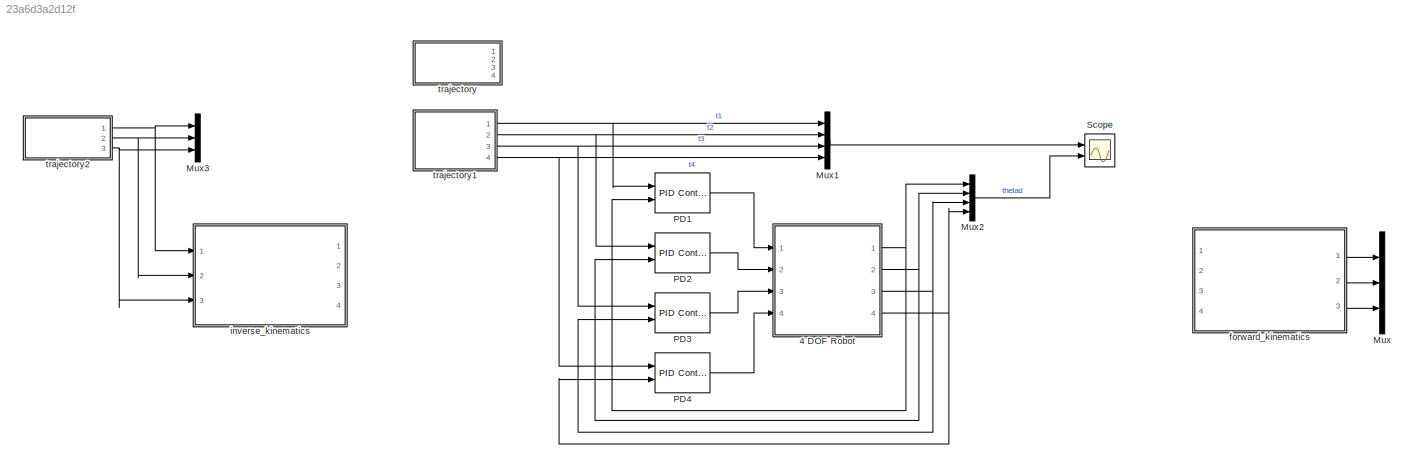
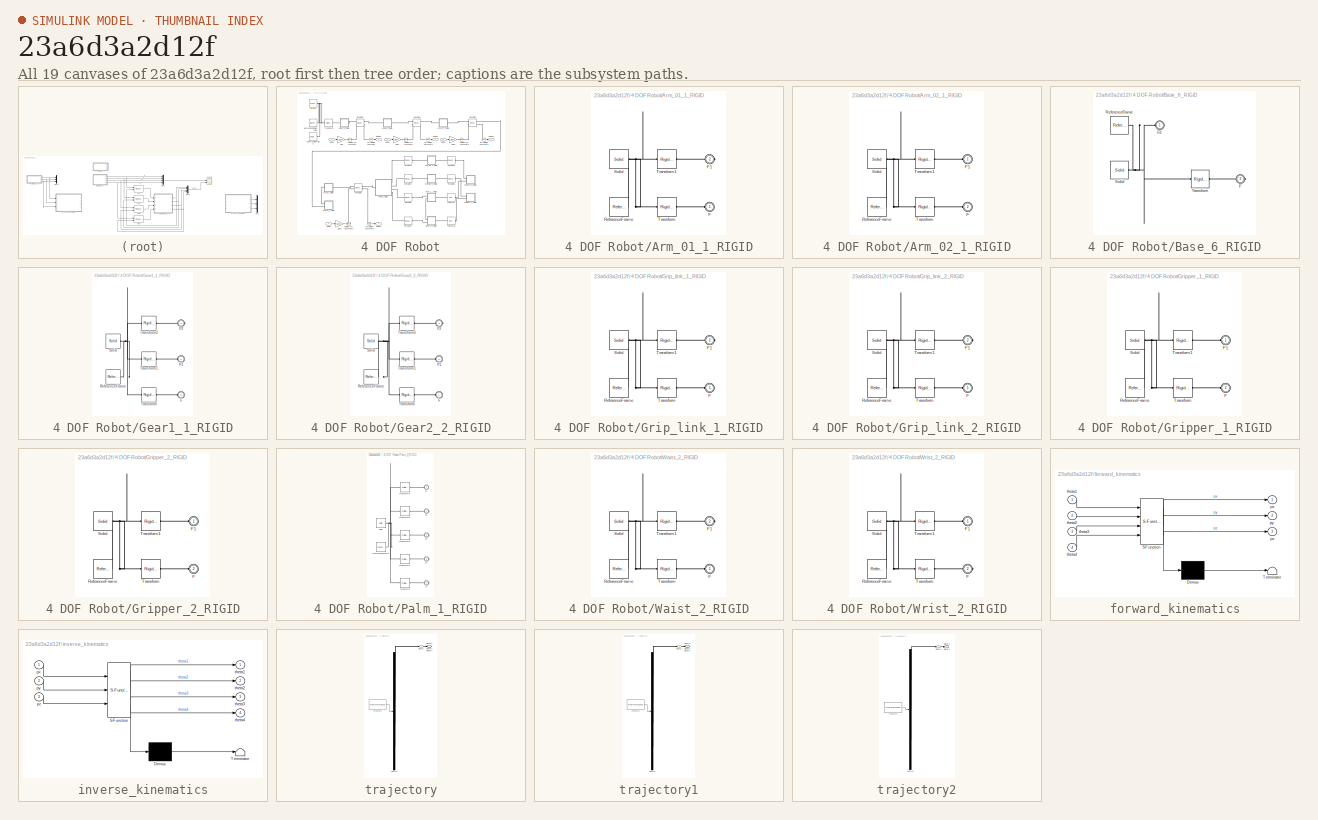
[diagram: thumbnail index - all 19 canvases of the model, root first then tree order]
MODEL slx_23a6d3a2d12f
KIND model
CONFIG AbsTol = auto
CONFIG EnableMultiTasking = off
CONFIG FixedStep = auto
CONFIG MaxStep = auto
CONFIG MinStep = auto
CONFIG RelTol = 1e-3
CONFIG SampleTimeConstraint = Unconstrained
CONFIG Solver = VariableStepAuto
CONFIG SolverName = VariableStepAuto
CONFIG StartTime = 0.0
CONFIG StopTime = 10
WORKSPACE source: external: MATLAB File  (data not in archive)
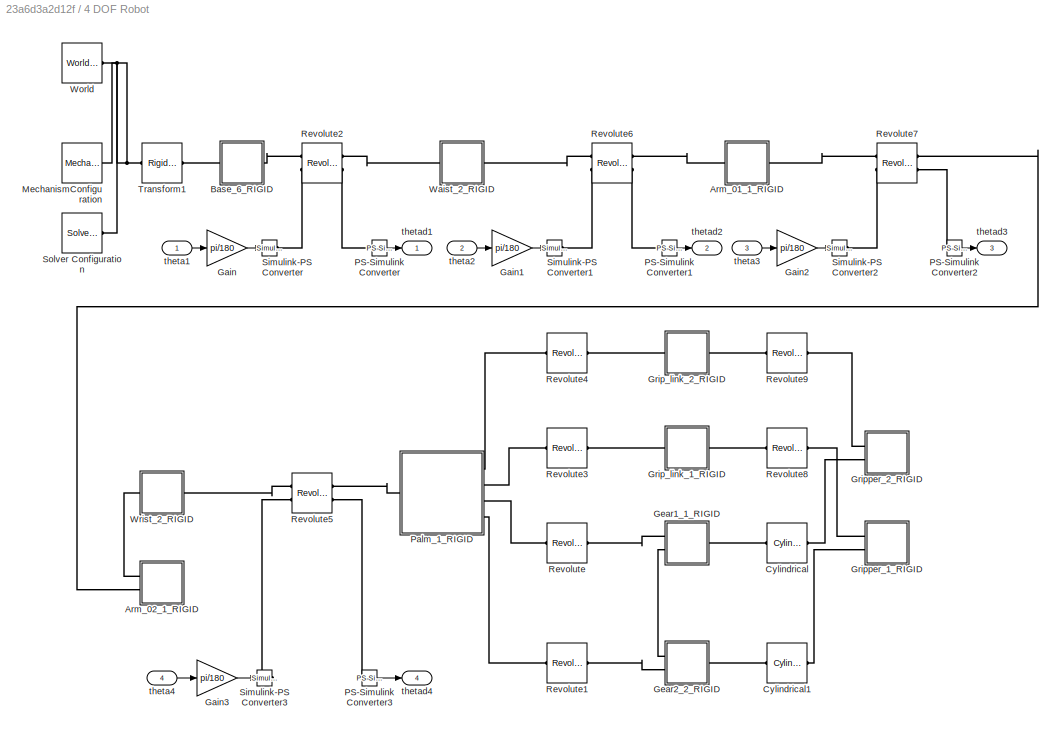
BLOCK [SubSystem] 4 DOF Robot
  Ports = [4, 4]
  RequestExecContextInheritance = off
BLOCK [SubSystem] 4 DOF Robot/Arm_01_1_RIGID
  Ports = [0, 0, 0, 0, 0, 1, 1]
  RequestExecContextInheritance = off
BLOCK [PMIOPort] 4 DOF Robot/Arm_01_1_RIGID/F
  Side = Left
BLOCK [PMIOPort] 4 DOF Robot/Arm_01_1_RIGID/F1
  Port = 2
  Side = Right
BLOCK [Reference] 4 DOF Robot/Arm_01_1_RIGID/ReferenceFrame  REF=sm_lib/Frames and
Transforms/Reference
Frame
  Ports = [0, 0, 0, 0, 0, 0, 1]
  SourceBlock = sm_lib/Frames and\nTransforms/Reference\nFrame
  SourceProductBaseCode = MS
  SourceProductName = Simscape Multibody
  SourceType = Reference\nFrame
BLOCK [Reference] 4 DOF Robot/Arm_01_1_RIGID/Solid  REF=sm_lib/Body Elements/Solid
  Ports = [0, 0, 0, 0, 0, 0, 1]
  SourceBlock = sm_lib/Body Elements/Solid
  SourceProductBaseCode = MS
  SourceProductName = Simscape Multibody
  SourceType = Solid
BLOCK [Reference] 4 DOF Robot/Arm_01_1_RIGID/Transform  REF=sm_lib/Frames and
Transforms/Rigid
Transform
  Ports = [0, 0, 0, 0, 0, 1, 1]
  SourceBlock = sm_lib/Frames and\nTransforms/Rigid\nTransform
  SourceProductBaseCode = MS
  SourceProductName = Simscape Multibody
  SourceType = Rigid\nTransform
BLOCK [Reference] 4 DOF Robot/Arm_01_1_RIGID/Transform1  REF=sm_lib/Frames and
Transforms/Rigid
Transform
  Ports = [0, 0, 0, 0, 0, 1, 1]
  SourceBlock = sm_lib/Frames and\nTransforms/Rigid\nTransform
  SourceProductBaseCode = MS
  SourceProductName = Simscape Multibody
  SourceType = Rigid\nTransform
BLOCK [SubSystem] 4 DOF Robot/Arm_02_1_RIGID
  Ports = [0, 0, 0, 0, 0, 2]
  RequestExecContextInheritance = off
BLOCK [PMIOPort] 4 DOF Robot/Arm_02_1_RIGID/F
  Port = 2
  Side = Left
BLOCK [PMIOPort] 4 DOF Robot/Arm_02_1_RIGID/F1
  Side = Left
BLOCK [Reference] 4 DOF Robot/Arm_02_1_RIGID/ReferenceFrame  REF=sm_lib/Frames and
Transforms/Reference
Frame
  Ports = [0, 0, 0, 0, 0, 0, 1]
  SourceBlock = sm_lib/Frames and\nTransforms/Reference\nFrame
  SourceProductBaseCode = MS
  SourceProductName = Simscape Multibody
  SourceType = Reference\nFrame
BLOCK [Reference] 4 DOF Robot/Arm_02_1_RIGID/Solid  REF=sm_lib/Body Elements/Solid
  Ports = [0, 0, 0, 0, 0, 0, 1]
  SourceBlock = sm_lib/Body Elements/Solid
  SourceProductBaseCode = MS
  SourceProductName = Simscape Multibody
  SourceType = Solid
BLOCK [Reference] 4 DOF Robot/Arm_02_1_RIGID/Transform  REF=sm_lib/Frames and
Transforms/Rigid
Transform
  Ports = [0, 0, 0, 0, 0, 1, 1]
  SourceBlock = sm_lib/Frames and\nTransforms/Rigid\nTransform
  SourceProductBaseCode = MS
  SourceProductName = Simscape Multibody
  SourceType = Rigid\nTransform
BLOCK [Reference] 4 DOF Robot/Arm_02_1_RIGID/Transform1  REF=sm_lib/Frames and
Transforms/Rigid
Transform
  Ports = [0, 0, 0, 0, 0, 1, 1]
  SourceBlock = sm_lib/Frames and\nTransforms/Rigid\nTransform
  SourceProductBaseCode = MS
  SourceProductName = Simscape Multibody
  SourceType = Rigid\nTransform
BLOCK [SubSystem] 4 DOF Robot/Base_6_RIGID
  Ports = [0, 0, 0, 0, 0, 1, 1]
  RequestExecContextInheritance = off
BLOCK [PMIOPort] 4 DOF Robot/Base_6_RIGID/F
  Port = 2
  Side = Right
BLOCK [PMIOPort] 4 DOF Robot/Base_6_RIGID/F2
  Side = Left
BLOCK [Reference] 4 DOF Robot/Base_6_RIGID/ReferenceFrame  REF=sm_lib/Frames and
Transforms/Reference
Frame
  Ports = [0, 0, 0, 0, 0, 0, 1]
  SourceBlock = sm_lib/Frames and\nTransforms/Reference\nFrame
  SourceProductBaseCode = MS
  SourceProductName = Simscape Multibody
  SourceType = Reference\nFrame
BLOCK [Reference] 4 DOF Robot/Base_6_RIGID/Solid  REF=sm_lib/Body Elements/Solid
  Ports = [0, 0, 0, 0, 0, 0, 1]
  SourceBlock = sm_lib/Body Elements/Solid
  SourceProductBaseCode = MS
  SourceProductName = Simscape Multibody
  SourceType = Solid
BLOCK [Reference] 4 DOF Robot/Base_6_RIGID/Transform  REF=sm_lib/Frames and
Transforms/Rigid
Transform
  Ports = [0, 0, 0, 0, 0, 1, 1]
  SourceBlock = sm_lib/Frames and\nTransforms/Rigid\nTransform
  SourceProductBaseCode = MS
  SourceProductName = Simscape Multibody
  SourceType = Rigid\nTransform
BLOCK [Reference] 4 DOF Robot/Cylindrical  REF=sm_lib/Joints/Cylindrical
Joint
  Ports = [0, 0, 0, 0, 0, 1, 1]
  SourceBlock = sm_lib/Joints/Cylindrical\nJoint
  SourceProductBaseCode = MS
  SourceProductName = Simscape Multibody
  SourceType = Cylindrical\nJoint
BLOCK [Reference] 4 DOF Robot/Cylindrical1  REF=sm_lib/Joints/Cylindrical
Joint
  Ports = [0, 0, 0, 0, 0, 1, 1]
  SourceBlock = sm_lib/Joints/Cylindrical\nJoint
  SourceProductBaseCode = MS
  SourceProductName = Simscape Multibody
  SourceType = Cylindrical\nJoint
BLOCK [Gain] 4 DOF Robot/Gain
  Gain = pi/180
  OutDataTypeStr = Inherit: Inherit via internal rule
  ParamDataTypeStr = Inherit: Inherit via internal rule
  SaturateOnIntegerOverflow = off
BLOCK [Gain] 4 DOF Robot/Gain1
  Gain = pi/180
  OutDataTypeStr = Inherit: Inherit via internal rule
  ParamDataTypeStr = Inherit: Inherit via internal rule
  SaturateOnIntegerOverflow = off
BLOCK [Gain] 4 DOF Robot/Gain2
  Gain = pi/180
  OutDataTypeStr = Inherit: Inherit via internal rule
  ParamDataTypeStr = Inherit: Inherit via internal rule
  SaturateOnIntegerOverflow = off
BLOCK [Gain] 4 DOF Robot/Gain3
  Gain = pi/180
  OutDataTypeStr = Inherit: Inherit via internal rule
  ParamDataTypeStr = Inherit: Inherit via internal rule
  SaturateOnIntegerOverflow = off
BLOCK [SubSystem] 4 DOF Robot/Gear1_1_RIGID
  Ports = [0, 0, 0, 0, 0, 2, 1]
  RequestExecContextInheritance = off
BLOCK [PMIOPort] 4 DOF Robot/Gear1_1_RIGID/F
  Port = 2
  Side = Left
BLOCK [PMIOPort] 4 DOF Robot/Gear1_1_RIGID/F1
  Side = Left
BLOCK [PMIOPort] 4 DOF Robot/Gear1_1_RIGID/F2
  Port = 3
  Side = Right
BLOCK [Reference] 4 DOF Robot/Gear1_1_RIGID/ReferenceFrame  REF=sm_lib/Frames and
Transforms/Reference
Frame
  Ports = [0, 0, 0, 0, 0, 0, 1]
  SourceBlock = sm_lib/Frames and\nTransforms/Reference\nFrame
  SourceProductBaseCode = MS
  SourceProductName = Simscape Multibody
  SourceType = Reference\nFrame
BLOCK [Reference] 4 DOF Robot/Gear1_1_RIGID/Solid  REF=sm_lib/Body Elements/Solid
  Ports = [0, 0, 0, 0, 0, 0, 1]
  SourceBlock = sm_lib/Body Elements/Solid
  SourceProductBaseCode = MS
  SourceProductName = Simscape Multibody
  SourceType = Solid
BLOCK [Reference] 4 DOF Robot/Gear1_1_RIGID/Transform  REF=sm_lib/Frames and
Transforms/Rigid
Transform
  Ports = [0, 0, 0, 0, 0, 1, 1]
  SourceBlock = sm_lib/Frames and\nTransforms/Rigid\nTransform
  SourceProductBaseCode = MS
  SourceProductName = Simscape Multibody
  SourceType = Rigid\nTransform
BLOCK [Reference] 4 DOF Robot/Gear1_1_RIGID/Transform1  REF=sm_lib/Frames and
Transforms/Rigid
Transform
  Ports = [0, 0, 0, 0, 0, 1, 1]
  SourceBlock = sm_lib/Frames and\nTransforms/Rigid\nTransform
  SourceProductBaseCode = MS
  SourceProductName = Simscape Multibody
  SourceType = Rigid\nTransform
BLOCK [Reference] 4 DOF Robot/Gear1_1_RIGID/Transform2  REF=sm_lib/Frames and
Transforms/Rigid
Transform
  Ports = [0, 0, 0, 0, 0, 1, 1]
  SourceBlock = sm_lib/Frames and\nTransforms/Rigid\nTransform
  SourceProductBaseCode = MS
  SourceProductName = Simscape Multibody
  SourceType = Rigid\nTransform
BLOCK [SubSystem] 4 DOF Robot/Gear2_2_RIGID
  Ports = [0, 0, 0, 0, 0, 2, 1]
  RequestExecContextInheritance = off
BLOCK [PMIOPort] 4 DOF Robot/Gear2_2_RIGID/F
  Side = Left
BLOCK [PMIOPort] 4 DOF Robot/Gear2_2_RIGID/F1
  Port = 2
  Side = Left
BLOCK [PMIOPort] 4 DOF Robot/Gear2_2_RIGID/F2
  Port = 3
  Side = Right
BLOCK [Reference] 4 DOF Robot/Gear2_2_RIGID/ReferenceFrame  REF=sm_lib/Frames and
Transforms/Reference
Frame
  Ports = [0, 0, 0, 0, 0, 0, 1]
  SourceBlock = sm_lib/Frames and\nTransforms/Reference\nFrame
  SourceProductBaseCode = MS
  SourceProductName = Simscape Multibody
  SourceType = Reference\nFrame
BLOCK [Reference] 4 DOF Robot/Gear2_2_RIGID/Solid  REF=sm_lib/Body Elements/Solid
  Ports = [0, 0, 0, 0, 0, 0, 1]
  SourceBlock = sm_lib/Body Elements/Solid
  SourceProductBaseCode = MS
  SourceProductName = Simscape Multibody
  SourceType = Solid
BLOCK [Reference] 4 DOF Robot/Gear2_2_RIGID/Transform  REF=sm_lib/Frames and
Transforms/Rigid
Transform
  Ports = [0, 0, 0, 0, 0, 1, 1]
  SourceBlock = sm_lib/Frames and\nTransforms/Rigid\nTransform
  SourceProductBaseCode = MS
  SourceProductName = Simscape Multibody
  SourceType = Rigid\nTransform
BLOCK [Reference] 4 DOF Robot/Gear2_2_RIGID/Transform1  REF=sm_lib/Frames and
Transforms/Rigid
Transform
  Ports = [0, 0, 0, 0, 0, 1, 1]
  SourceBlock = sm_lib/Frames and\nTransforms/Rigid\nTransform
  SourceProductBaseCode = MS
  SourceProductName = Simscape Multibody
  SourceType = Rigid\nTransform
BLOCK [Reference] 4 DOF Robot/Gear2_2_RIGID/Transform2  REF=sm_lib/Frames and
Transforms/Rigid
Transform
  Ports = [0, 0, 0, 0, 0, 1, 1]
  SourceBlock = sm_lib/Frames and\nTransforms/Rigid\nTransform
  SourceProductBaseCode = MS
  SourceProductName = Simscape Multibody
  SourceType = Rigid\nTransform
BLOCK [SubSystem] 4 DOF Robot/Grip_link_1_RIGID
  Ports = [0, 0, 0, 0, 0, 1, 1]
  RequestExecContextInheritance = off
BLOCK [PMIOPort] 4 DOF Robot/Grip_link_1_RIGID/F
  Side = Left
BLOCK [PMIOPort] 4 DOF Robot/Grip_link_1_RIGID/F1
  Port = 2
  Side = Right
BLOCK [Reference] 4 DOF Robot/Grip_link_1_RIGID/ReferenceFrame  REF=sm_lib/Frames and
Transforms/Reference
Frame
  Ports = [0, 0, 0, 0, 0, 0, 1]
  SourceBlock = sm_lib/Frames and\nTransforms/Reference\nFrame
  SourceProductBaseCode = MS
  SourceProductName = Simscape Multibody
  SourceType = Reference\nFrame
BLOCK [Reference] 4 DOF Robot/Grip_link_1_RIGID/Solid  REF=sm_lib/Body Elements/Solid
  Ports = [0, 0, 0, 0, 0, 0, 1]
  SourceBlock = sm_lib/Body Elements/Solid
  SourceProductBaseCode = MS
  SourceProductName = Simscape Multibody
  SourceType = Solid
BLOCK [Reference] 4 DOF Robot/Grip_link_1_RIGID/Transform  REF=sm_lib/Frames and
Transforms/Rigid
Transform
  Ports = [0, 0, 0, 0, 0, 1, 1]
  SourceBlock = sm_lib/Frames and\nTransforms/Rigid\nTransform
  SourceProductBaseCode = MS
  SourceProductName = Simscape Multibody
  SourceType = Rigid\nTransform
BLOCK [Reference] 4 DOF Robot/Grip_link_1_RIGID/Transform1  REF=sm_lib/Frames and
Transforms/Rigid
Transform
  Ports = [0, 0, 0, 0, 0, 1, 1]
  SourceBlock = sm_lib/Frames and\nTransforms/Rigid\nTransform
  SourceProductBaseCode = MS
  SourceProductName = Simscape Multibody
  SourceType = Rigid\nTransform
BLOCK [SubSystem] 4 DOF Robot/Grip_link_2_RIGID
  Ports = [0, 0, 0, 0, 0, 1, 1]
  RequestExecContextInheritance = off
BLOCK [PMIOPort] 4 DOF Robot/Grip_link_2_RIGID/F
  Side = Left
BLOCK [PMIOPort] 4 DOF Robot/Grip_link_2_RIGID/F1
  Port = 2
  Side = Right
BLOCK [Reference] 4 DOF Robot/Grip_link_2_RIGID/ReferenceFrame  REF=sm_lib/Frames and
Transforms/Reference
Frame
  Ports = [0, 0, 0, 0, 0, 0, 1]
  SourceBlock = sm_lib/Frames and\nTransforms/Reference\nFrame
  SourceProductBaseCode = MS
  SourceProductName = Simscape Multibody
  SourceType = Reference\nFrame
BLOCK [Reference] 4 DOF Robot/Grip_link_2_RIGID/Solid  REF=sm_lib/Body Elements/Solid
  Ports = [0, 0, 0, 0, 0, 0, 1]
  SourceBlock = sm_lib/Body Elements/Solid
  SourceProductBaseCode = MS
  SourceProductName = Simscape Multibody
  SourceType = Solid
BLOCK [Reference] 4 DOF Robot/Grip_link_2_RIGID/Transform  REF=sm_lib/Frames and
Transforms/Rigid
Transform
  Ports = [0, 0, 0, 0, 0, 1, 1]
  SourceBlock = sm_lib/Frames and\nTransforms/Rigid\nTransform
  SourceProductBaseCode = MS
  SourceProductName = Simscape Multibody
  SourceType = Rigid\nTransform
BLOCK [Reference] 4 DOF Robot/Grip_link_2_RIGID/Transform1  REF=sm_lib/Frames and
Transforms/Rigid
Transform
  Ports = [0, 0, 0, 0, 0, 1, 1]
  SourceBlock = sm_lib/Frames and\nTransforms/Rigid\nTransform
  SourceProductBaseCode = MS
  SourceProductName = Simscape Multibody
  SourceType = Rigid\nTransform
BLOCK [SubSystem] 4 DOF Robot/Gripper_1_RIGID
  Ports = [0, 0, 0, 0, 0, 2]
  RequestExecContextInheritance = off
BLOCK [PMIOPort] 4 DOF Robot/Gripper_1_RIGID/F
  Port = 2
  Side = Left
BLOCK [PMIOPort] 4 DOF Robot/Gripper_1_RIGID/F1
  Side = Left
BLOCK [Reference] 4 DOF Robot/Gripper_1_RIGID/ReferenceFrame  REF=sm_lib/Frames and
Transforms/Reference
Frame
  Ports = [0, 0, 0, 0, 0, 0, 1]
  SourceBlock = sm_lib/Frames and\nTransforms/Reference\nFrame
  SourceProductBaseCode = MS
  SourceProductName = Simscape Multibody
  SourceType = Reference\nFrame
BLOCK [Reference] 4 DOF Robot/Gripper_1_RIGID/Solid  REF=sm_lib/Body Elements/Solid
  Ports = [0, 0, 0, 0, 0, 0, 1]
  SourceBlock = sm_lib/Body Elements/Solid
  SourceProductBaseCode = MS
  SourceProductName = Simscape Multibody
  SourceType = Solid
BLOCK [Reference] 4 DOF Robot/Gripper_1_RIGID/Transform  REF=sm_lib/Frames and
Transforms/Rigid
Transform
  Ports = [0, 0, 0, 0, 0, 1, 1]
  SourceBlock = sm_lib/Frames and\nTransforms/Rigid\nTransform
  SourceProductBaseCode = MS
  SourceProductName = Simscape Multibody
  SourceType = Rigid\nTransform
BLOCK [Reference] 4 DOF Robot/Gripper_1_RIGID/Transform1  REF=sm_lib/Frames and
Transforms/Rigid
Transform
  Ports = [0, 0, 0, 0, 0, 1, 1]
  SourceBlock = sm_lib/Frames and\nTransforms/Rigid\nTransform
  SourceProductBaseCode = MS
  SourceProductName = Simscape Multibody
  SourceType = Rigid\nTransform
BLOCK [SubSystem] 4 DOF Robot/Gripper_2_RIGID
  Ports = [0, 0, 0, 0, 0, 2]
  RequestExecContextInheritance = off
BLOCK [PMIOPort] 4 DOF Robot/Gripper_2_RIGID/F
  Port = 2
  Side = Left
BLOCK [PMIOPort] 4 DOF Robot/Gripper_2_RIGID/F1
  Side = Left
BLOCK [Reference] 4 DOF Robot/Gripper_2_RIGID/ReferenceFrame  REF=sm_lib/Frames and
Transforms/Reference
Frame
  Ports = [0, 0, 0, 0, 0, 0, 1]
  SourceBlock = sm_lib/Frames and\nTransforms/Reference\nFrame
  SourceProductBaseCode = MS
  SourceProductName = Simscape Multibody
  SourceType = Reference\nFrame
BLOCK [Reference] 4 DOF Robot/Gripper_2_RIGID/Solid  REF=sm_lib/Body Elements/Solid
  Ports = [0, 0, 0, 0, 0, 0, 1]
  SourceBlock = sm_lib/Body Elements/Solid
  SourceProductBaseCode = MS
  SourceProductName = Simscape Multibody
  SourceType = Solid
BLOCK [Reference] 4 DOF Robot/Gripper_2_RIGID/Transform  REF=sm_lib/Frames and
Transforms/Rigid
Transform
  Ports = [0, 0, 0, 0, 0, 1, 1]
  SourceBlock = sm_lib/Frames and\nTransforms/Rigid\nTransform
  SourceProductBaseCode = MS
  SourceProductName = Simscape Multibody
  SourceType = Rigid\nTransform
BLOCK [Reference] 4 DOF Robot/Gripper_2_RIGID/Transform1  REF=sm_lib/Frames and
Transforms/Rigid
Transform
  Ports = [0, 0, 0, 0, 0, 1, 1]
  SourceBlock = sm_lib/Frames and\nTransforms/Rigid\nTransform
  SourceProductBaseCode = MS
  SourceProductName = Simscape Multibody
  SourceType = Rigid\nTransform
BLOCK [Reference] 4 DOF Robot/MechanismConfiguration  REF=sm_lib/Utilities/Mechanism
Configuration
  Ports = [0, 0, 0, 0, 0, 0, 1]
  SourceBlock = sm_lib/Utilities/Mechanism\nConfiguration
  SourceProductBaseCode = MS
  SourceProductName = Simscape Multibody
  SourceType = Mechanism\nConfiguration
BLOCK [Reference] 4 DOF Robot/PS-Simulink Converter  REF=nesl_utility/PS-Simulink
Converter
  Ports = [0, 1, 0, 0, 0, 1]
  SourceBlock = nesl_utility/PS-Simulink\nConverter
  SourceProductBaseCode = SS
  SourceProductName = Simscape
  SourceType = PS-Simulink\nConverter
BLOCK [Reference] 4 DOF Robot/PS-Simulink Converter1  REF=nesl_utility/PS-Simulink
Converter
  Ports = [0, 1, 0, 0, 0, 1]
  SourceBlock = nesl_utility/PS-Simulink\nConverter
  SourceProductBaseCode = SS
  SourceProductName = Simscape
  SourceType = PS-Simulink\nConverter
BLOCK [Reference] 4 DOF Robot/PS-Simulink Converter2  REF=nesl_utility/PS-Simulink
Converter
  Ports = [0, 1, 0, 0, 0, 1]
  SourceBlock = nesl_utility/PS-Simulink\nConverter
  SourceProductBaseCode = SS
  SourceProductName = Simscape
  SourceType = PS-Simulink\nConverter
BLOCK [Reference] 4 DOF Robot/PS-Simulink Converter3  REF=nesl_utility/PS-Simulink
Converter
  Ports = [0, 1, 0, 0, 0, 1]
  SourceBlock = nesl_utility/PS-Simulink\nConverter
  SourceProductBaseCode = SS
  SourceProductName = Simscape
  SourceType = PS-Simulink\nConverter
BLOCK [SubSystem] 4 DOF Robot/Palm_1_RIGID
  Ports = [0, 0, 0, 0, 0, 1, 4]
  RequestExecContextInheritance = off
BLOCK [PMIOPort] 4 DOF Robot/Palm_1_RIGID/F
  Port = 4
  Side = Right
BLOCK [PMIOPort] 4 DOF Robot/Palm_1_RIGID/F1
  Port = 5
  Side = Right
BLOCK [PMIOPort] 4 DOF Robot/Palm_1_RIGID/F2
  Port = 3
  Side = Right
BLOCK [PMIOPort] 4 DOF Robot/Palm_1_RIGID/F3
  Port = 2
  Side = Right
BLOCK [PMIOPort] 4 DOF Robot/Palm_1_RIGID/F4
  Side = Left
BLOCK [Reference] 4 DOF Robot/Palm_1_RIGID/ReferenceFrame  REF=sm_lib/Frames and
Transforms/Reference
Frame
  Ports = [0, 0, 0, 0, 0, 0, 1]
  SourceBlock = sm_lib/Frames and\nTransforms/Reference\nFrame
  SourceProductBaseCode = MS
  SourceProductName = Simscape Multibody
  SourceType = Reference\nFrame
BLOCK [Reference] 4 DOF Robot/Palm_1_RIGID/Solid  REF=sm_lib/Body Elements/Solid
  Ports = [0, 0, 0, 0, 0, 0, 1]
  SourceBlock = sm_lib/Body Elements/Solid
  SourceProductBaseCode = MS
  SourceProductName = Simscape Multibody
  SourceType = Solid
BLOCK [Reference] 4 DOF Robot/Palm_1_RIGID/Transform  REF=sm_lib/Frames and
Transforms/Rigid
Transform
  Ports = [0, 0, 0, 0, 0, 1, 1]
  SourceBlock = sm_lib/Frames and\nTransforms/Rigid\nTransform
  SourceProductBaseCode = MS
  SourceProductName = Simscape Multibody
  SourceType = Rigid\nTransform
BLOCK [Reference] 4 DOF Robot/Palm_1_RIGID/Transform1  REF=sm_lib/Frames and
Transforms/Rigid
Transform
  Ports = [0, 0, 0, 0, 0, 1, 1]
  SourceBlock = sm_lib/Frames and\nTransforms/Rigid\nTransform
  SourceProductBaseCode = MS
  SourceProductName = Simscape Multibody
  SourceType = Rigid\nTransform
BLOCK [Reference] 4 DOF Robot/Palm_1_RIGID/Transform2  REF=sm_lib/Frames and
Transforms/Rigid
Transform
  Ports = [0, 0, 0, 0, 0, 1, 1]
  SourceBlock = sm_lib/Frames and\nTransforms/Rigid\nTransform
  SourceProductBaseCode = MS
  SourceProductName = Simscape Multibody
  SourceType = Rigid\nTransform
BLOCK [Reference] 4 DOF Robot/Palm_1_RIGID/Transform3  REF=sm_lib/Frames and
Transforms/Rigid
Transform
  Ports = [0, 0, 0, 0, 0, 1, 1]
  SourceBlock = sm_lib/Frames and\nTransforms/Rigid\nTransform
  SourceProductBaseCode = MS
  SourceProductName = Simscape Multibody
  SourceType = Rigid\nTransform
BLOCK [Reference] 4 DOF Robot/Palm_1_RIGID/Transform4  REF=sm_lib/Frames and
Transforms/Rigid
Transform
  Ports = [0, 0, 0, 0, 0, 1, 1]
  SourceBlock = sm_lib/Frames and\nTransforms/Rigid\nTransform
  SourceProductBaseCode = MS
  SourceProductName = Simscape Multibody
  SourceType = Rigid\nTransform
BLOCK [Reference] 4 DOF Robot/Revolute  REF=sm_lib/Joints/Revolute Joint
  Ports = [0, 0, 0, 0, 0, 1, 1]
  SourceBlock = sm_lib/Joints/Revolute Joint
  SourceProductBaseCode = MS
  SourceProductName = Simscape Multibody
  SourceType = Revolute Joint
BLOCK [Reference] 4 DOF Robot/Revolute1  REF=sm_lib/Joints/Revolute Joint
  Ports = [0, 0, 0, 0, 0, 1, 1]
  SourceBlock = sm_lib/Joints/Revolute Joint
  SourceProductBaseCode = MS
  SourceProductName = Simscape Multibody
  SourceType = Revolute Joint
BLOCK [Reference] 4 DOF Robot/Revolute2  REF=sm_lib/Joints/Revolute Joint
  Ports = [0, 0, 0, 0, 0, 2, 2]
  SourceBlock = sm_lib/Joints/Revolute Joint
  SourceProductBaseCode = MS
  SourceProductName = Simscape Multibody
  SourceType = Revolute Joint
BLOCK [Reference] 4 DOF Robot/Revolute3  REF=sm_lib/Joints/Revolute Joint
  Ports = [0, 0, 0, 0, 0, 1, 1]
  SourceBlock = sm_lib/Joints/Revolute Joint
  SourceProductBaseCode = MS
  SourceProductName = Simscape Multibody
  SourceType = Revolute Joint
BLOCK [Reference] 4 DOF Robot/Revolute4  REF=sm_lib/Joints/Revolute Joint
  Ports = [0, 0, 0, 0, 0, 1, 1]
  SourceBlock = sm_lib/Joints/Revolute Joint
  SourceProductBaseCode = MS
  SourceProductName = Simscape Multibody
  SourceType = Revolute Joint
BLOCK [Reference] 4 DOF Robot/Revolute5  REF=sm_lib/Joints/Revolute Joint
  Ports = [0, 0, 0, 0, 0, 2, 2]
  SourceBlock = sm_lib/Joints/Revolute Joint
  SourceProductBaseCode = MS
  SourceProductName = Simscape Multibody
  SourceType = Revolute Joint
BLOCK [Reference] 4 DOF Robot/Revolute6  REF=sm_lib/Joints/Revolute Joint
  Ports = [0, 0, 0, 0, 0, 2, 2]
  SourceBlock = sm_lib/Joints/Revolute Joint
  SourceProductBaseCode = MS
  SourceProductName = Simscape Multibody
  SourceType = Revolute Joint
BLOCK [Reference] 4 DOF Robot/Revolute7  REF=sm_lib/Joints/Revolute Joint
  Ports = [0, 0, 0, 0, 0, 2, 2]
  SourceBlock = sm_lib/Joints/Revolute Joint
  SourceProductBaseCode = MS
  SourceProductName = Simscape Multibody
  SourceType = Revolute Joint
BLOCK [Reference] 4 DOF Robot/Revolute8  REF=sm_lib/Joints/Revolute Joint
  Ports = [0, 0, 0, 0, 0, 1, 1]
  SourceBlock = sm_lib/Joints/Revolute Joint
  SourceProductBaseCode = MS
  SourceProductName = Simscape Multibody
  SourceType = Revolute Joint
BLOCK [Reference] 4 DOF Robot/Revolute9  REF=sm_lib/Joints/Revolute Joint
  Ports = [0, 0, 0, 0, 0, 1, 1]
  SourceBlock = sm_lib/Joints/Revolute Joint
  SourceProductBaseCode = MS
  SourceProductName = Simscape Multibody
  SourceType = Revolute Joint
BLOCK [Reference] 4 DOF Robot/Simulink-PS Converter  REF=nesl_utility/Simulink-PS
Converter
  Ports = [1, 0, 0, 0, 0, 0, 1]
  SourceBlock = nesl_utility/Simulink-PS\nConverter
  SourceProductBaseCode = SS
  SourceProductName = Simscape
  SourceType = Simulink-PS\nConverter
BLOCK [Reference] 4 DOF Robot/Simulink-PS Converter1  REF=nesl_utility/Simulink-PS
Converter
  Ports = [1, 0, 0, 0, 0, 0, 1]
  SourceBlock = nesl_utility/Simulink-PS\nConverter
  SourceProductBaseCode = SS
  SourceProductName = Simscape
  SourceType = Simulink-PS\nConverter
BLOCK [Reference] 4 DOF Robot/Simulink-PS Converter2  REF=nesl_utility/Simulink-PS
Converter
  Ports = [1, 0, 0, 0, 0, 0, 1]
  SourceBlock = nesl_utility/Simulink-PS\nConverter
  SourceProductBaseCode = SS
  SourceProductName = Simscape
  SourceType = Simulink-PS\nConverter
BLOCK [Reference] 4 DOF Robot/Simulink-PS Converter3  REF=nesl_utility/Simulink-PS
Converter
  Ports = [1, 0, 0, 0, 0, 0, 1]
  SourceBlock = nesl_utility/Simulink-PS\nConverter
  SourceProductBaseCode = SS
  SourceProductName = Simscape
  SourceType = Simulink-PS\nConverter
BLOCK [Reference] 4 DOF Robot/Solver Configuration  REF=nesl_utility/Solver
Configuration
  Ports = [0, 0, 0, 0, 0, 0, 1]
  SourceBlock = nesl_utility/Solver\nConfiguration
  SourceProductBaseCode = SS
  SourceProductName = Simscape
  SourceType = Solver\nConfiguration
BLOCK [Reference] 4 DOF Robot/Transform1  REF=sm_lib/Frames and
Transforms/Rigid
Transform
  Ports = [0, 0, 0, 0, 0, 1, 1]
  SourceBlock = sm_lib/Frames and\nTransforms/Rigid\nTransform
  SourceProductBaseCode = MS
  SourceProductName = Simscape Multibody
  SourceType = Rigid\nTransform
BLOCK [SubSystem] 4 DOF Robot/Waist_2_RIGID
  Ports = [0, 0, 0, 0, 0, 1, 1]
  RequestExecContextInheritance = off
BLOCK [PMIOPort] 4 DOF Robot/Waist_2_RIGID/F
  Side = Left
BLOCK [PMIOPort] 4 DOF Robot/Waist_2_RIGID/F1
  Port = 2
  Side = Right
BLOCK [Reference] 4 DOF Robot/Waist_2_RIGID/ReferenceFrame  REF=sm_lib/Frames and
Transforms/Reference
Frame
  Ports = [0, 0, 0, 0, 0, 0, 1]
  SourceBlock = sm_lib/Frames and\nTransforms/Reference\nFrame
  SourceProductBaseCode = MS
  SourceProductName = Simscape Multibody
  SourceType = Reference\nFrame
BLOCK [Reference] 4 DOF Robot/Waist_2_RIGID/Solid  REF=sm_lib/Body Elements/Solid
  Ports = [0, 0, 0, 0, 0, 0, 1]
  SourceBlock = sm_lib/Body Elements/Solid
  SourceProductBaseCode = MS
  SourceProductName = Simscape Multibody
  SourceType = Solid
BLOCK [Reference] 4 DOF Robot/Waist_2_RIGID/Transform  REF=sm_lib/Frames and
Transforms/Rigid
Transform
  Ports = [0, 0, 0, 0, 0, 1, 1]
  SourceBlock = sm_lib/Frames and\nTransforms/Rigid\nTransform
  SourceProductBaseCode = MS
  SourceProductName = Simscape Multibody
  SourceType = Rigid\nTransform
BLOCK [Reference] 4 DOF Robot/Waist_2_RIGID/Transform1  REF=sm_lib/Frames and
Transforms/Rigid
Transform
  Ports = [0, 0, 0, 0, 0, 1, 1]
  SourceBlock = sm_lib/Frames and\nTransforms/Rigid\nTransform
  SourceProductBaseCode = MS
  SourceProductName = Simscape Multibody
  SourceType = Rigid\nTransform
BLOCK [Reference] 4 DOF Robot/World  REF=sm_lib/Frames and
Transforms/World Frame
  Ports = [0, 0, 0, 0, 0, 0, 1]
  SourceBlock = sm_lib/Frames and\nTransforms/World Frame
  SourceProductBaseCode = MS
  SourceProductName = Simscape Multibody
  SourceType = World Frame
BLOCK [SubSystem] 4 DOF Robot/Wrist_2_RIGID
  Ports = [0, 0, 0, 0, 0, 1, 1]
  RequestExecContextInheritance = off
BLOCK [PMIOPort] 4 DOF Robot/Wrist_2_RIGID/F
  Port = 2
  Side = Right
BLOCK [PMIOPort] 4 DOF Robot/Wrist_2_RIGID/F1
  Side = Left
BLOCK [Reference] 4 DOF Robot/Wrist_2_RIGID/ReferenceFrame  REF=sm_lib/Frames and
Transforms/Reference
Frame
  Ports = [0, 0, 0, 0, 0, 0, 1]
  SourceBlock = sm_lib/Frames and\nTransforms/Reference\nFrame
  SourceProductBaseCode = MS
  SourceProductName = Simscape Multibody
  SourceType = Reference\nFrame
BLOCK [Reference] 4 DOF Robot/Wrist_2_RIGID/Solid  REF=sm_lib/Body Elements/Solid
  Ports = [0, 0, 0, 0, 0, 0, 1]
  SourceBlock = sm_lib/Body Elements/Solid
  SourceProductBaseCode = MS
  SourceProductName = Simscape Multibody
  SourceType = Solid
BLOCK [Reference] 4 DOF Robot/Wrist_2_RIGID/Transform  REF=sm_lib/Frames and
Transforms/Rigid
Transform
  Ports = [0, 0, 0, 0, 0, 1, 1]
  SourceBlock = sm_lib/Frames and\nTransforms/Rigid\nTransform
  SourceProductBaseCode = MS
  SourceProductName = Simscape Multibody
  SourceType = Rigid\nTransform
BLOCK [Reference] 4 DOF Robot/Wrist_2_RIGID/Transform1  REF=sm_lib/Frames and
Transforms/Rigid
Transform
  Ports = [0, 0, 0, 0, 0, 1, 1]
  SourceBlock = sm_lib/Frames and\nTransforms/Rigid\nTransform
  SourceProductBaseCode = MS
  SourceProductName = Simscape Multibody
  SourceType = Rigid\nTransform
BLOCK [Inport] 4 DOF Robot/theta1
  IconDisplay = Port number
BLOCK [Inport] 4 DOF Robot/theta2
  IconDisplay = Port number
  Port = 2
BLOCK [Inport] 4 DOF Robot/theta3
  IconDisplay = Port number
  Port = 3
BLOCK [Inport] 4 DOF Robot/theta4
  IconDisplay = Port number
  Port = 4
BLOCK [Outport] 4 DOF Robot/thetad1
  IconDisplay = Port number
BLOCK [Outport] 4 DOF Robot/thetad2
  IconDisplay = Port number
  Port = 2
BLOCK [Outport] 4 DOF Robot/thetad3
  IconDisplay = Port number
  Port = 3
BLOCK [Outport] 4 DOF Robot/thetad4
  IconDisplay = Port number
  Port = 4
BLOCK [Mux] Mux
  DisplayOption = bar
  Inputs = 3
  Ports = [3, 1]
BLOCK [Mux] Mux1
  DisplayOption = bar
  Ports = [4, 1]
BLOCK [Mux] Mux2
  DisplayOption = bar
  Ports = [4, 1]
BLOCK [Mux] Mux3
  DisplayOption = bar
  Inputs = 3
  Ports = [3, 1]
BLOCK [Reference] PD1  REF=simulink/Continuous/PID Controller (2DOF)
  Ports = [2, 1]
  SourceBlock = simulink/Continuous/PID Controller (2DOF)
  SourceProductBaseCode = SL
  SourceProductName = Simulink
  SourceType = PID 2dof
BLOCK [Reference] PD2  REF=simulink/Continuous/PID Controller (2DOF)
  Ports = [2, 1]
  SourceBlock = simulink/Continuous/PID Controller (2DOF)
  SourceProductBaseCode = SL
  SourceProductName = Simulink
  SourceType = PID 2dof
BLOCK [Reference] PD3  REF=simulink/Continuous/PID Controller (2DOF)
  Ports = [2, 1]
  SourceBlock = simulink/Continuous/PID Controller (2DOF)
  SourceProductBaseCode = SL
  SourceProductName = Simulink
  SourceType = PID 2dof
BLOCK [Reference] PD4  REF=simulink/Continuous/PID Controller (2DOF)
  Ports = [2, 1]
  SourceBlock = simulink/Continuous/PID Controller (2DOF)
  SourceProductBaseCode = SL
  SourceProductName = Simulink
  SourceType = PID 2dof
BLOCK [Scope] Scope
  Floating = off
  NumInputPorts = 2
  Ports = [2]
  ScopeSpecificationString = Simulink.scopes.TimeScopeBlockCfg('CurrentConfiguration', extmgr.ConfigurationSet(extmgr.Configuration('Core','General UI',true),extmgr.Configuration('Core','Source UI',true),extmgr.Configuration('Sources','WiredSimulink',true),extmgr.Configuration('Visuals','Time Domain',true,'SerializedDisplays',{struct('MinYLimReal','-187.5','MaxYLimReal','287.5','YLabelReal','','MinYLimMag',' 0.00000','MaxYLim...<+2039ch>
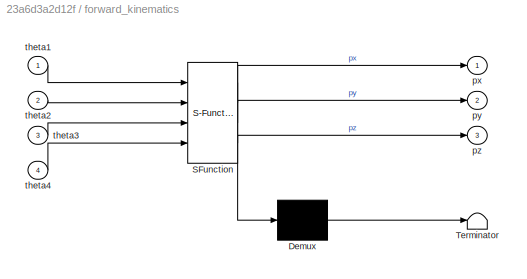
BLOCK [SubSystem] forward_kinematics
  ErrorFcn = Stateflow.Translate.translate
  PermitHierarchicalResolution = ExplicitOnly
  Ports = [4, 3]
  RequestExecContextInheritance = off
  SFBlockType = MATLAB Function
  TreatAsAtomicUnit = on
BLOCK [Demux] forward_kinematics/ Demux 
  Outputs = 1
  Ports = [1, 1]
BLOCK [S-Function] forward_kinematics/ SFunction 
  EnableBusSupport = on
  FunctionName = sf_sfun
  PortCounts = [4 4]
  Ports = [4, 4]
  SFcnIsStateOwnerBlock = off
  SFunctionDeploymentMode = off
  Tag = Stateflow S-Function Assem 1
BLOCK [Terminator] forward_kinematics/ Terminator 
BLOCK [Outport] forward_kinematics/px
  IconDisplay = Port number
BLOCK [Outport] forward_kinematics/py
  IconDisplay = Port number
  Port = 2
BLOCK [Outport] forward_kinematics/pz
  IconDisplay = Port number
  Port = 3
BLOCK [Inport] forward_kinematics/theta1
  IconDisplay = Port number
BLOCK [Inport] forward_kinematics/theta2
  IconDisplay = Port number
  Port = 2
BLOCK [Inport] forward_kinematics/theta3
  IconDisplay = Port number
  Port = 3
BLOCK [Inport] forward_kinematics/theta4
  IconDisplay = Port number
  Port = 4
BLOCK [SubSystem] inverse_kinematics
  ErrorFcn = Stateflow.Translate.translate
  PermitHierarchicalResolution = ExplicitOnly
  Ports = [3, 4]
  RequestExecContextInheritance = off
  SFBlockType = MATLAB Function
  TreatAsAtomicUnit = on
BLOCK [Demux] inverse_kinematics/ Demux 
  Outputs = 1
  Ports = [1, 1]
BLOCK [S-Function] inverse_kinematics/ SFunction 
  EnableBusSupport = on
  FunctionName = sf_sfun
  PortCounts = [3 5]
  Ports = [3, 5]
  SFcnIsStateOwnerBlock = off
  SFunctionDeploymentMode = off
  Tag = Stateflow S-Function Assem 2
BLOCK [Terminator] inverse_kinematics/ Terminator 
BLOCK [Inport] inverse_kinematics/px
  IconDisplay = Port number
BLOCK [Inport] inverse_kinematics/py
  IconDisplay = Port number
  Port = 2
BLOCK [Inport] inverse_kinematics/pz
  IconDisplay = Port number
  Port = 3
BLOCK [Outport] inverse_kinematics/theta1
  IconDisplay = Port number
BLOCK [Outport] inverse_kinematics/theta2
  IconDisplay = Port number
  Port = 2
BLOCK [Outport] inverse_kinematics/theta3
  IconDisplay = Port number
  Port = 3
BLOCK [Outport] inverse_kinematics/theta4
  IconDisplay = Port number
  Port = 4
BLOCK [SubSystem] trajectory
  ClipboardFcn = sigbuilder_block('clipboard');
  CloseFcn = sigbuilder_block('close');
  ContinueFcn = sigbuilder_block('continue');
  CopyFcn = sigbuilder_block('copy');
  DeleteFcn = sigbuilder_block('delete');
  LoadFcn = sigbuilder_block('load');
  MaskHideContents = on
  ModelCloseFcn = sigbuilder_block('modelClose');
  NameChangeFcn = sigbuilder_block('namechange');
  OpenFcn = sigbuilder_block('open',[27 96 550.5 407.25 ]);
  PauseFcn = sigbuilder_block('pause');
  Ports = [0, 4]
  PreSaveFcn = sigbuilder_block('preSave');
  RequestExecContextInheritance = off
  StartFcn = sigbuilder_block('start');
  StopFcn = sigbuilder_block('stop');
  Tag = STV Subsys
BLOCK [Demux] trajectory/Demux
  Ports = [1, 4]
  Tag = STV Demux
BLOCK [FromWorkspace] trajectory/FromWs
  SampleTime = 0
  Tag = STV FromWs
  VariableName = tuvar
  ZeroCross = on
BLOCK [Outport] trajectory/Signal 1
  IconDisplay = Port number
  Tag = STV Outport
BLOCK [Outport] trajectory/Signal 2
  IconDisplay = Port number
  Port = 2
  Tag = STV Outport
BLOCK [Outport] trajectory/Signal 3
  IconDisplay = Port number
  Port = 3
  Tag = STV Outport
BLOCK [Outport] trajectory/Signal 4
  IconDisplay = Port number
  Port = 4
  Tag = STV Outport
BLOCK [SubSystem] trajectory1
  ClipboardFcn = sigbuilder_block('clipboard');
  CloseFcn = sigbuilder_block('close');
  ContinueFcn = sigbuilder_block('continue');
  CopyFcn = sigbuilder_block('copy');
  DeleteFcn = sigbuilder_block('delete');
  LoadFcn = sigbuilder_block('load');
  MaskHideContents = on
  ModelCloseFcn = sigbuilder_block('modelClose');
  NameChangeFcn = sigbuilder_block('namechange');
  OpenFcn = sigbuilder_block('open',[579 100.5 550.5 407.25 ]);
  PauseFcn = sigbuilder_block('pause');
  Ports = [0, 4]
  PreSaveFcn = sigbuilder_block('preSave');
  RequestExecContextInheritance = off
  StartFcn = sigbuilder_block('start');
  StopFcn = sigbuilder_block('stop');
  Tag = STV Subsys
BLOCK [Demux] trajectory1/Demux
  Ports = [1, 4]
  Tag = STV Demux
BLOCK [FromWorkspace] trajectory1/FromWs
  SampleTime = 0
  Tag = STV FromWs
  VariableName = tuvar
  ZeroCross = on
BLOCK [Outport] trajectory1/Signal 1
  IconDisplay = Port number
  Tag = STV Outport
BLOCK [Outport] trajectory1/Signal 2
  IconDisplay = Port number
  Port = 2
  Tag = STV Outport
BLOCK [Outport] trajectory1/Signal 3
  IconDisplay = Port number
  Port = 3
  Tag = STV Outport
BLOCK [Outport] trajectory1/Signal 4
  IconDisplay = Port number
  Port = 4
  Tag = STV Outport
BLOCK [SubSystem] trajectory2
  ClipboardFcn = sigbuilder_block('clipboard');
  CloseFcn = sigbuilder_block('close');
  ContinueFcn = sigbuilder_block('continue');
  CopyFcn = sigbuilder_block('copy');
  DeleteFcn = sigbuilder_block('delete');
  LoadFcn = sigbuilder_block('load');
  MaskHideContents = on
  ModelCloseFcn = sigbuilder_block('modelClose');
  NameChangeFcn = sigbuilder_block('namechange');
  OpenFcn = sigbuilder_block('open',[437.6 199.2 550.4 400 ]);
  PauseFcn = sigbuilder_block('pause');
  Ports = [0, 3]
  PreSaveFcn = sigbuilder_block('preSave');
  RequestExecContextInheritance = off
  StartFcn = sigbuilder_block('start');
  StopFcn = sigbuilder_block('stop');
  Tag = STV Subsys
BLOCK [Demux] trajectory2/Demux
  Outputs = 3
  Ports = [1, 3]
  Tag = STV Demux
BLOCK [FromWorkspace] trajectory2/FromWs
  SampleTime = 0
  Tag = STV FromWs
  VariableName = tuvar
  ZeroCross = on
BLOCK [Outport] trajectory2/Signal 1
  IconDisplay = Port number
  Tag = STV Outport
BLOCK [Outport] trajectory2/Signal 2
  IconDisplay = Port number
  Port = 2
  Tag = STV Outport
BLOCK [Outport] trajectory2/Signal 3
  IconDisplay = Port number
  Port = 3
  Tag = STV Outport
LINE 4 DOF Robot/Gain1:1 -> 4 DOF Robot/Simulink-PS Converter1:1
LINE 4 DOF Robot/Gain2:1 -> 4 DOF Robot/Simulink-PS Converter2:1
LINE 4 DOF Robot/Gain3:1 -> 4 DOF Robot/Simulink-PS Converter3:1
LINE 4 DOF Robot/Gain:1 -> 4 DOF Robot/Simulink-PS Converter:1
LINE 4 DOF Robot/PS-Simulink Converter1:1 -> 4 DOF Robot/thetad2:1
LINE 4 DOF Robot/PS-Simulink Converter2:1 -> 4 DOF Robot/thetad3:1
LINE 4 DOF Robot/PS-Simulink Converter3:1 -> 4 DOF Robot/thetad4:1
LINE 4 DOF Robot/PS-Simulink Converter:1 -> 4 DOF Robot/thetad1:1
LINE 4 DOF Robot/theta1:1 -> 4 DOF Robot/Gain:1
LINE 4 DOF Robot/theta2:1 -> 4 DOF Robot/Gain1:1
LINE 4 DOF Robot/theta3:1 -> 4 DOF Robot/Gain2:1
LINE 4 DOF Robot/theta4:1 -> 4 DOF Robot/Gain3:1
NET 4 DOF Robot:1 -> Mux2:1, PD1:2
NET 4 DOF Robot:2 -> Mux2:2, PD2:2
NET 4 DOF Robot:3 -> Mux2:3, PD3:2
NET 4 DOF Robot:4 -> Mux2:4, PD4:2
LINE Mux1:1 -> Scope:1
LINE Mux2:1 -> Scope:2
LINE PD1:1 -> 4 DOF Robot:1
LINE PD2:1 -> 4 DOF Robot:2
LINE PD3:1 -> 4 DOF Robot:3
LINE PD4:1 -> 4 DOF Robot:4
LINE forward_kinematics:1 -> Mux:1
LINE forward_kinematics:2 -> Mux:2
LINE forward_kinematics:3 -> Mux:3
NET trajectory1:1 -> Mux1:1, PD1:1
NET trajectory1:2 -> Mux1:2, PD2:1
NET trajectory1:3 -> Mux1:3, PD3:1
NET trajectory1:4 -> Mux1:4, PD4:1
NET trajectory2:1 -> Mux3:1, inverse_kinematics:1
NET trajectory2:2 -> Mux3:2, inverse_kinematics:2
NET trajectory2:3 -> Mux3:3, inverse_kinematics:3
PLINE 4 DOF Robot/Arm_01_1_RIGID/F1:RConn1 -- 4 DOF Robot/Arm_01_1_RIGID/Transform1:RConn1
PLINE 4 DOF Robot/Arm_01_1_RIGID/F:RConn1 -- 4 DOF Robot/Arm_01_1_RIGID/Transform:RConn1
PNET net1: 4 DOF Robot/Arm_01_1_RIGID/ReferenceFrame:RConn1 -- 4 DOF Robot/Arm_01_1_RIGID/Solid:RConn1 -- 4 DOF Robot/Arm_01_1_RIGID/Transform1:LConn1 -- 4 DOF Robot/Arm_01_1_RIGID/Transform:LConn1
PLINE 4 DOF Robot/Arm_01_1_RIGID:LConn1 -- 4 DOF Robot/Revolute6:RConn1
PLINE 4 DOF Robot/Arm_01_1_RIGID:RConn1 -- 4 DOF Robot/Revolute7:LConn1
PLINE 4 DOF Robot/Arm_02_1_RIGID/F1:RConn1 -- 4 DOF Robot/Arm_02_1_RIGID/Transform1:RConn1
PLINE 4 DOF Robot/Arm_02_1_RIGID/F:RConn1 -- 4 DOF Robot/Arm_02_1_RIGID/Transform:RConn1
PNET net2: 4 DOF Robot/Arm_02_1_RIGID/ReferenceFrame:RConn1 -- 4 DOF Robot/Arm_02_1_RIGID/Solid:RConn1 -- 4 DOF Robot/Arm_02_1_RIGID/Transform1:LConn1 -- 4 DOF Robot/Arm_02_1_RIGID/Transform:LConn1
PLINE 4 DOF Robot/Arm_02_1_RIGID:LConn1 -- 4 DOF Robot/Wrist_2_RIGID:LConn1
PLINE 4 DOF Robot/Arm_02_1_RIGID:LConn2 -- 4 DOF Robot/Revolute7:RConn1
PNET net3: 4 DOF Robot/Base_6_RIGID/F2:RConn1 -- 4 DOF Robot/Base_6_RIGID/ReferenceFrame:RConn1 -- 4 DOF Robot/Base_6_RIGID/Solid:RConn1 -- 4 DOF Robot/Base_6_RIGID/Transform:LConn1
PLINE 4 DOF Robot/Base_6_RIGID/F:RConn1 -- 4 DOF Robot/Base_6_RIGID/Transform:RConn1
PLINE 4 DOF Robot/Base_6_RIGID:LConn1 -- 4 DOF Robot/Transform1:RConn1
PLINE 4 DOF Robot/Base_6_RIGID:RConn1 -- 4 DOF Robot/Revolute2:LConn1
PLINE 4 DOF Robot/Cylindrical1:LConn1 -- 4 DOF Robot/Gear2_2_RIGID:RConn1
PLINE 4 DOF Robot/Cylindrical1:RConn1 -- 4 DOF Robot/Gripper_1_RIGID:LConn2
PLINE 4 DOF Robot/Cylindrical:LConn1 -- 4 DOF Robot/Gear1_1_RIGID:RConn1
PLINE 4 DOF Robot/Cylindrical:RConn1 -- 4 DOF Robot/Gripper_2_RIGID:LConn2
PLINE 4 DOF Robot/Gear1_1_RIGID/F1:RConn1 -- 4 DOF Robot/Gear1_1_RIGID/Transform1:RConn1
PLINE 4 DOF Robot/Gear1_1_RIGID/F2:RConn1 -- 4 DOF Robot/Gear1_1_RIGID/Transform2:RConn1
PLINE 4 DOF Robot/Gear1_1_RIGID/F:RConn1 -- 4 DOF Robot/Gear1_1_RIGID/Transform:RConn1
PNET net4: 4 DOF Robot/Gear1_1_RIGID/ReferenceFrame:RConn1 -- 4 DOF Robot/Gear1_1_RIGID/Solid:RConn1 -- 4 DOF Robot/Gear1_1_RIGID/Transform1:LConn1 -- 4 DOF Robot/Gear1_1_RIGID/Transform2:LConn1 -- 4 DOF Robot/Gear1_1_RIGID/Transform:LConn1
PLINE 4 DOF Robot/Gear1_1_RIGID:LConn1 -- 4 DOF Robot/Revolute:RConn1
PLINE 4 DOF Robot/Gear1_1_RIGID:LConn2 -- 4 DOF Robot/Gear2_2_RIGID:LConn1
PLINE 4 DOF Robot/Gear2_2_RIGID/F1:RConn1 -- 4 DOF Robot/Gear2_2_RIGID/Transform1:RConn1
PLINE 4 DOF Robot/Gear2_2_RIGID/F2:RConn1 -- 4 DOF Robot/Gear2_2_RIGID/Transform2:RConn1
PLINE 4 DOF Robot/Gear2_2_RIGID/F:RConn1 -- 4 DOF Robot/Gear2_2_RIGID/Transform:RConn1
PNET net5: 4 DOF Robot/Gear2_2_RIGID/ReferenceFrame:RConn1 -- 4 DOF Robot/Gear2_2_RIGID/Solid:RConn1 -- 4 DOF Robot/Gear2_2_RIGID/Transform1:LConn1 -- 4 DOF Robot/Gear2_2_RIGID/Transform2:LConn1 -- 4 DOF Robot/Gear2_2_RIGID/Transform:LConn1
PLINE 4 DOF Robot/Gear2_2_RIGID:LConn2 -- 4 DOF Robot/Revolute1:RConn1
PLINE 4 DOF Robot/Grip_link_1_RIGID/F1:RConn1 -- 4 DOF Robot/Grip_link_1_RIGID/Transform1:RConn1
PLINE 4 DOF Robot/Grip_link_1_RIGID/F:RConn1 -- 4 DOF Robot/Grip_link_1_RIGID/Transform:RConn1
PNET net6: 4 DOF Robot/Grip_link_1_RIGID/ReferenceFrame:RConn1 -- 4 DOF Robot/Grip_link_1_RIGID/Solid:RConn1 -- 4 DOF Robot/Grip_link_1_RIGID/Transform1:LConn1 -- 4 DOF Robot/Grip_link_1_RIGID/Transform:LConn1
PLINE 4 DOF Robot/Grip_link_1_RIGID:LConn1 -- 4 DOF Robot/Revolute3:RConn1
PLINE 4 DOF Robot/Grip_link_1_RIGID:RConn1 -- 4 DOF Robot/Revolute8:LConn1
PLINE 4 DOF Robot/Grip_link_2_RIGID/F1:RConn1 -- 4 DOF Robot/Grip_link_2_RIGID/Transform1:RConn1
PLINE 4 DOF Robot/Grip_link_2_RIGID/F:RConn1 -- 4 DOF Robot/Grip_link_2_RIGID/Transform:RConn1
PNET net7: 4 DOF Robot/Grip_link_2_RIGID/ReferenceFrame:RConn1 -- 4 DOF Robot/Grip_link_2_RIGID/Solid:RConn1 -- 4 DOF Robot/Grip_link_2_RIGID/Transform1:LConn1 -- 4 DOF Robot/Grip_link_2_RIGID/Transform:LConn1
PLINE 4 DOF Robot/Grip_link_2_RIGID:LConn1 -- 4 DOF Robot/Revolute4:RConn1
PLINE 4 DOF Robot/Grip_link_2_RIGID:RConn1 -- 4 DOF Robot/Revolute9:LConn1
PLINE 4 DOF Robot/Gripper_1_RIGID/F1:RConn1 -- 4 DOF Robot/Gripper_1_RIGID/Transform1:RConn1
PLINE 4 DOF Robot/Gripper_1_RIGID/F:RConn1 -- 4 DOF Robot/Gripper_1_RIGID/Transform:RConn1
PNET net8: 4 DOF Robot/Gripper_1_RIGID/ReferenceFrame:RConn1 -- 4 DOF Robot/Gripper_1_RIGID/Solid:RConn1 -- 4 DOF Robot/Gripper_1_RIGID/Transform1:LConn1 -- 4 DOF Robot/Gripper_1_RIGID/Transform:LConn1
PLINE 4 DOF Robot/Gripper_1_RIGID:LConn1 -- 4 DOF Robot/Revolute8:RConn1
PLINE 4 DOF Robot/Gripper_2_RIGID/F1:RConn1 -- 4 DOF Robot/Gripper_2_RIGID/Transform1:RConn1
PLINE 4 DOF Robot/Gripper_2_RIGID/F:RConn1 -- 4 DOF Robot/Gripper_2_RIGID/Transform:RConn1
PNET net9: 4 DOF Robot/Gripper_2_RIGID/ReferenceFrame:RConn1 -- 4 DOF Robot/Gripper_2_RIGID/Solid:RConn1 -- 4 DOF Robot/Gripper_2_RIGID/Transform1:LConn1 -- 4 DOF Robot/Gripper_2_RIGID/Transform:LConn1
PLINE 4 DOF Robot/Gripper_2_RIGID:LConn1 -- 4 DOF Robot/Revolute9:RConn1
PNET net10: 4 DOF Robot/MechanismConfiguration:RConn1 -- 4 DOF Robot/Solver Configuration:RConn1 -- 4 DOF Robot/Transform1:LConn1 -- 4 DOF Robot/World:RConn1
PLINE 4 DOF Robot/PS-Simulink Converter1:LConn1 -- 4 DOF Robot/Revolute6:RConn2
PLINE 4 DOF Robot/PS-Simulink Converter2:LConn1 -- 4 DOF Robot/Revolute7:RConn2
PLINE 4 DOF Robot/PS-Simulink Converter3:LConn1 -- 4 DOF Robot/Revolute5:RConn2
PLINE 4 DOF Robot/PS-Simulink Converter:LConn1 -- 4 DOF Robot/Revolute2:RConn2
PLINE 4 DOF Robot/Palm_1_RIGID/F1:RConn1 -- 4 DOF Robot/Palm_1_RIGID/Transform1:RConn1
PLINE 4 DOF Robot/Palm_1_RIGID/F2:RConn1 -- 4 DOF Robot/Palm_1_RIGID/Transform2:RConn1
PLINE 4 DOF Robot/Palm_1_RIGID/F3:RConn1 -- 4 DOF Robot/Palm_1_RIGID/Transform3:RConn1
PLINE 4 DOF Robot/Palm_1_RIGID/F4:RConn1 -- 4 DOF Robot/Palm_1_RIGID/Transform4:RConn1
PLINE 4 DOF Robot/Palm_1_RIGID/F:RConn1 -- 4 DOF Robot/Palm_1_RIGID/Transform:RConn1
PNET net11: 4 DOF Robot/Palm_1_RIGID/ReferenceFrame:RConn1 -- 4 DOF Robot/Palm_1_RIGID/Solid:RConn1 -- 4 DOF Robot/Palm_1_RIGID/Transform1:LConn1 -- 4 DOF Robot/Palm_1_RIGID/Transform2:LConn1 -- 4 DOF Robot/Palm_1_RIGID/Transform3:LConn1 -- 4 DOF Robot/Palm_1_RIGID/Transform4:LConn1 -- 4 DOF Robot/Palm_1_RIGID/Transform:LConn1
PLINE 4 DOF Robot/Palm_1_RIGID:LConn1 -- 4 DOF Robot/Revolute5:RConn1
PLINE 4 DOF Robot/Palm_1_RIGID:RConn1 -- 4 DOF Robot/Revolute4:LConn1
PLINE 4 DOF Robot/Palm_1_RIGID:RConn2 -- 4 DOF Robot/Revolute3:LConn1
PLINE 4 DOF Robot/Palm_1_RIGID:RConn3 -- 4 DOF Robot/Revolute:LConn1
PLINE 4 DOF Robot/Palm_1_RIGID:RConn4 -- 4 DOF Robot/Revolute1:LConn1
PLINE 4 DOF Robot/Revolute2:LConn2 -- 4 DOF Robot/Simulink-PS Converter:RConn1
PLINE 4 DOF Robot/Revolute2:RConn1 -- 4 DOF Robot/Waist_2_RIGID:LConn1
PLINE 4 DOF Robot/Revolute5:LConn1 -- 4 DOF Robot/Wrist_2_RIGID:RConn1
PLINE 4 DOF Robot/Revolute5:LConn2 -- 4 DOF Robot/Simulink-PS Converter3:RConn1
PLINE 4 DOF Robot/Revolute6:LConn1 -- 4 DOF Robot/Waist_2_RIGID:RConn1
PLINE 4 DOF Robot/Revolute6:LConn2 -- 4 DOF Robot/Simulink-PS Converter1:RConn1
PLINE 4 DOF Robot/Revolute7:LConn2 -- 4 DOF Robot/Simulink-PS Converter2:RConn1
PLINE 4 DOF Robot/Waist_2_RIGID/F1:RConn1 -- 4 DOF Robot/Waist_2_RIGID/Transform1:RConn1
PLINE 4 DOF Robot/Waist_2_RIGID/F:RConn1 -- 4 DOF Robot/Waist_2_RIGID/Transform:RConn1
PNET net12: 4 DOF Robot/Waist_2_RIGID/ReferenceFrame:RConn1 -- 4 DOF Robot/Waist_2_RIGID/Solid:RConn1 -- 4 DOF Robot/Waist_2_RIGID/Transform1:LConn1 -- 4 DOF Robot/Waist_2_RIGID/Transform:LConn1
PLINE 4 DOF Robot/Wrist_2_RIGID/F1:RConn1 -- 4 DOF Robot/Wrist_2_RIGID/Transform1:RConn1
PLINE 4 DOF Robot/Wrist_2_RIGID/F:RConn1 -- 4 DOF Robot/Wrist_2_RIGID/Transform:RConn1
PNET net13: 4 DOF Robot/Wrist_2_RIGID/ReferenceFrame:RConn1 -- 4 DOF Robot/Wrist_2_RIGID/Solid:RConn1 -- 4 DOF Robot/Wrist_2_RIGID/Transform1:LConn1 -- 4 DOF Robot/Wrist_2_RIGID/Transform:LConn1
note: NET lines group one-source signal fan-out (src -> all destinations, sorted); 1:1 wires keep LINE; PNET lines group multi-terminal physical nets as a canonical sorted terminal list (undirected conserving connections); 2-terminal nets keep the pairwise PLINE form
CHART forward_kinematics states=1 transitions=1
  STATE_LABEL 'eML_blk_kernel()'
  STATE_LABEL 'SCRIPT:\nfunction [px,py,pz] = forward_kinematics(theta1,theta2,theta3,theta4)\nd1 = 96.28;\na1 = 13.9;\na2 = 120;\na3 = 117.85;\na4 = 63.64;\npx = cos(theta1)*(a4*cos(theta2+theta3+theta4)+a3*cos(theta2+theta3)+a2*cos(theta2)+a1);\npy = sin(theta1)*(a4*cos(theta2+theta3+theta4)+a3*cos(theta2+theta3)+a2*cos(theta2)+a1);\npz = a4*sin(theta2+theta3+theta4)+a3*sin(theta2+theta3)+a2*sin(theta2)+d1;\n\n'
CHART inverse_kinematics states=1 transitions=1
  STATE_LABEL 'eML_blk_kernel()'
  STATE_LABEL 'SCRIPT:\nfunction [theta1,theta2,theta3,theta4] = inverse_kinematics(px,py,pz)\n%Thông số robot(mm)\nd1 = 96.28;\na1 = 13.9;\na2 = 120;\na3 = 117.85;\na4 = 63.64;\n%Tính theta1\ntheta1 = atan2(py,px);\n%Tính theta3\nA = px*cos(theta1)+py*sin(theta1)-a1-a4;\nB = pz-d1;\nc3 = (A^2+B^2-a3^2-a2^2)/(2*a3*a2);\ns3 = sqrt(1-c3^2);\ntheta3 = atan2(s3,c3);\n%Tính theta2\nc2 = A*(a3*c3+a2)+a3*s3*B;\ns2 = B*(a3*c3+a2)-a3*s3*A...<+63ch>'
